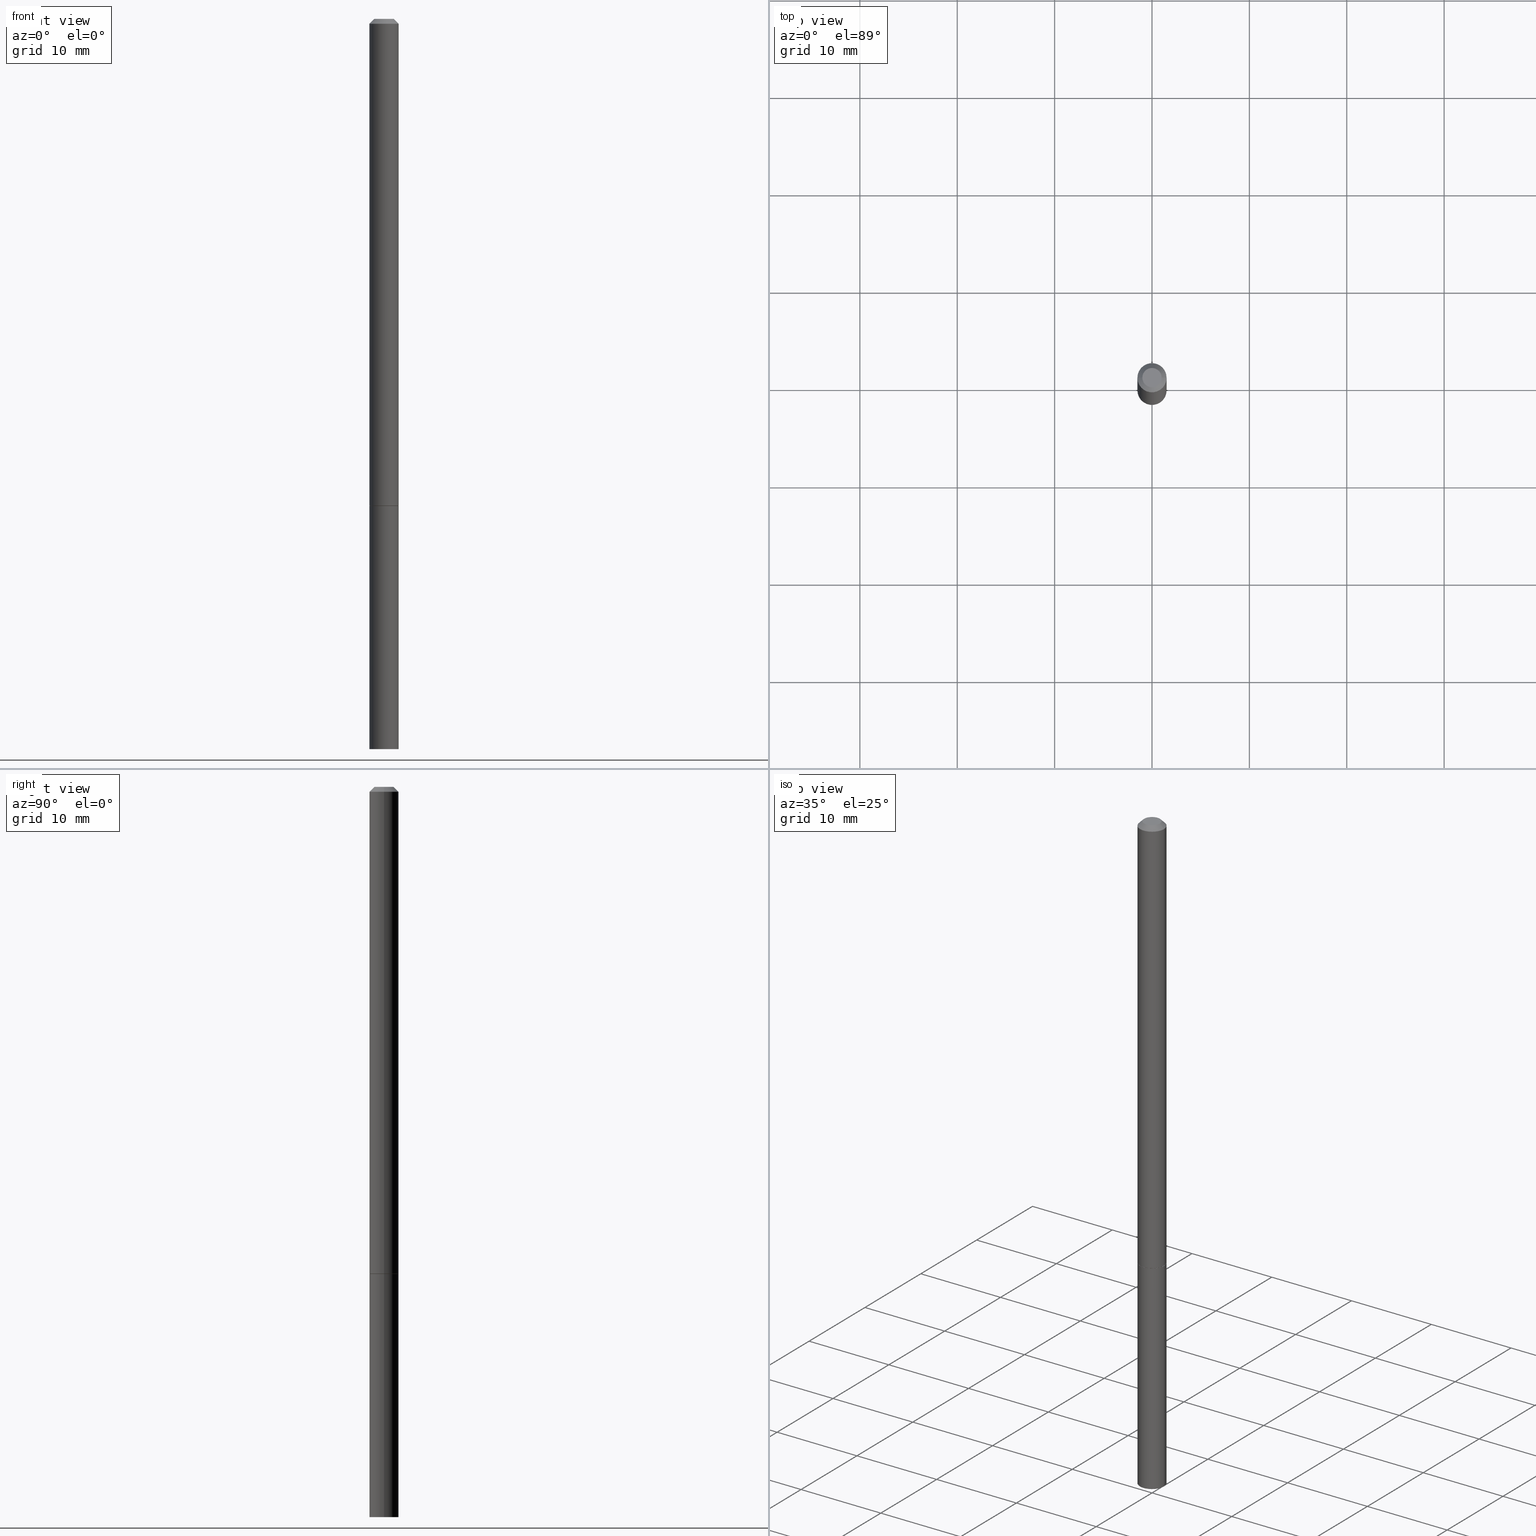
[diagram: canonical four-view strip — front | top / right | iso, engineering-drawing reading convention]
A machine part, canonical four-view strip (front | top / right | iso — engineering-drawing reading convention). The complete STEP part file that produces these views, byte-faithful:
ISO-10303-21;
HEADER;
FILE_DESCRIPTION (( 'STEP AP203' ),
    '1' );
FILE_NAME ('43301.STEP',
    '2024-02-28T04:17:36',
    ( '' ),
    ( '' ),
    'SwSTEP 2.0',
    'SolidWorks 2023',
    '' );
FILE_SCHEMA (( 'CONFIG_CONTROL_DESIGN' ));
ENDSEC;

DATA;
#1 = ORIENTED_EDGE ( 'NONE', *, *, #211, .T. ) ;
#2 = AXIS2_PLACEMENT_3D ( 'NONE', #182, #120, #38 ) ;
#3 = EDGE_CURVE ( 'NONE', #60, #321, #4, .T. ) ;
#4 = LINE ( 'NONE', #354, #289 ) ;
#5 = EDGE_CURVE ( 'NONE', #186, #293, #286, .T. ) ;
#6 = FACE_OUTER_BOUND ( 'NONE', #267, .T. ) ;
#7 = AXIS2_PLACEMENT_3D ( 'NONE', #167, #113, #84 ) ;
#8 = AXIS2_PLACEMENT_3D ( 'NONE', #136, #326, #132 ) ;
#9 = ORIENTED_EDGE ( 'NONE', *, *, #216, .F. ) ;
#10 = PLANE ( 'NONE',  #248 ) ;
#11 = CARTESIAN_POINT ( 'NONE',  ( 4.123439461174222518E-16, 0.05904999999999314270, -1.968500000000000139 ) ) ;
#12 = ORIENTED_EDGE ( 'NONE', *, *, #216, .T. ) ;
#13 = PLANE ( 'NONE',  #35 ) ;
#14 = VECTOR ( 'NONE', #362, 39.37007874015748854 ) ;
#15 =( CONVERSION_BASED_UNIT ( 'INCH', #163 ) LENGTH_UNIT ( ) NAMED_UNIT ( #63 ) );
#16 = ORIENTED_EDGE ( 'NONE', *, *, #29, .T. ) ;
#17 = DIRECTION ( 'NONE',  ( -2.445468806185136597E-29, 3.491481338843145583E-15, 1.000000000000000000 ) ) ;
#18 = DESIGN_CONTEXT ( 'detailed design', #251, 'design' ) ;
#19 = CARTESIAN_POINT ( 'NONE',  ( 0.000000000000000000, 0.000000000000000000, 0.000000000000000000 ) ) ;
#20 = FACE_OUTER_BOUND ( 'NONE', #303, .T. ) ;
#21 = APPROVAL_ROLE ( '' ) ;
#22 = ADVANCED_FACE ( 'NONE', ( #97 ), #230, .F. ) ;
#23 = CYLINDRICAL_SURFACE ( 'NONE', #310, 0.05904999999999984567 ) ;
#24 =( NAMED_UNIT ( * ) PLANE_ANGLE_UNIT ( ) SI_UNIT ( $, .RADIAN. ) );
#25 = CC_DESIGN_APPROVAL ( #131, ( #57 ) ) ;
#26 = LINE ( 'NONE', #110, #56 ) ;
#27 = PERSON_AND_ORGANIZATION ( #183, #315 ) ;
#28 = ORIENTED_EDGE ( 'NONE', *, *, #106, .T. ) ;
#29 = EDGE_CURVE ( 'NONE', #44, #41, #357, .T. ) ;
#30 = ORIENTED_EDGE ( 'NONE', *, *, #58, .T. ) ;
#31 = AXIS2_PLACEMENT_3D ( 'NONE', #190, #137, #359 ) ;
#32 = LOCAL_TIME ( 23, 17, 36.00000000000000000, #191 ) ;
#33 = ORIENTED_EDGE ( 'NONE', *, *, #356, .F. ) ;
#34 = PRODUCT_DEFINITION ( 'UNKNOWN', '', #57, #18 ) ;
#35 = AXIS2_PLACEMENT_3D ( 'NONE', #274, #262, #89 ) ;
#36 = ADVANCED_BREP_SHAPE_REPRESENTATION ( '43301', ( #70, #187, #144 ), #349 ) ;
#37 = EDGE_LOOP ( 'NONE', ( #33, #172, #158, #240 ) ) ;
#38 = DIRECTION ( 'NONE',  ( 1.000000000000000000, -6.982962677686270655E-15, 0.000000000000000000 ) ) ;
#39 = AXIS2_PLACEMENT_3D ( 'NONE', #249, #297, #271 ) ;
#40 = FACE_OUTER_BOUND ( 'NONE', #366, .T. ) ;
#41 = VERTEX_POINT ( 'NONE', #94 ) ;
#42 = CYLINDRICAL_SURFACE ( 'NONE', #241, 0.05905000000000001914 ) ;
#43 = ORIENTED_EDGE ( 'NONE', *, *, #117, .T. ) ;
#44 = VERTEX_POINT ( 'NONE', #352 ) ;
#45 = CARTESIAN_POINT ( 'NONE',  ( 0.05904999999999994975, -7.281833480291261254E-15, -1.967499999999999805 ) ) ;
#46 = CONICAL_SURFACE ( 'NONE', #160, 0.05904999999999974158, 0.7853981633974476129 ) ;
#47 = CARTESIAN_POINT ( 'NONE',  ( 4.890937612370292426E-31, -6.982962677686317493E-17, -0.02000000000000007674 ) ) ;
#48 = DIRECTION ( 'NONE',  ( -2.445468806185136597E-29, 3.491481338843145583E-15, 1.000000000000000000 ) ) ;
#49 = CC_DESIGN_PERSON_AND_ORGANIZATION_ASSIGNMENT ( #27, #363, ( #283 ) ) ;
#50 = COORDINATED_UNIVERSAL_TIME_OFFSET ( 5, 0, .BEHIND. ) ;
#51 = CARTESIAN_POINT ( 'NONE',  ( -0.05904999999999974158, 3.425143193405090089E-16, -0.02000000000000007674 ) ) ;
#52 = APPROVAL_STATUS ( 'not_yet_approved' ) ;
#53 = DIRECTION ( 'NONE',  ( 1.000000000000000000, -6.982962677686261977E-15, 0.000000000000000000 ) ) ;
#54 = APPROVAL_ROLE ( '' ) ;
#55 = EDGE_LOOP ( 'NONE', ( #69, #104, #324, #346 ) ) ;
#56 = VECTOR ( 'NONE', #327, 39.37007874015748143 ) ;
#57 = PRODUCT_DEFINITION_FORMATION_WITH_SPECIFIED_SOURCE ( 'ANY', '', #283, .NOT_KNOWN. ) ;
#58 = EDGE_CURVE ( 'NONE', #149, #307, #119, .T. ) ;
#59 = DIRECTION ( 'NONE',  ( -1.000000000000000000, 6.982962677686265922E-15, 0.000000000000000000 ) ) ;
#60 = VERTEX_POINT ( 'NONE', #99 ) ;
#61 = CONICAL_SURFACE ( 'NONE', #2, 0.05805000000000001131, 0.7853981633973801113 ) ;
#62 = APPROVAL_ROLE ( '' ) ;
#63 = DIMENSIONAL_EXPONENTS ( 1.000000000000000000, 0.000000000000000000, 0.000000000000000000, 0.000000000000000000, 0.000000000000000000, 0.000000000000000000, 0.000000000000000000 ) ;
#64 = CC_DESIGN_PERSON_AND_ORGANIZATION_ASSIGNMENT ( #175, #146, ( #71 ) ) ;
#65 = VERTEX_POINT ( 'NONE', #103 ) ;
#66 = FACE_OUTER_BOUND ( 'NONE', #37, .T. ) ;
#67 = ORIENTED_EDGE ( 'NONE', *, *, #222, .F. ) ;
#68 = DIRECTION ( 'NONE',  ( -2.445468806185136877E-29, 3.491481338843145188E-15, 1.000000000000000000 ) ) ;
#69 = ORIENTED_EDGE ( 'NONE', *, *, #308, .F. ) ;
#70 = MANIFOLD_SOLID_BREP ( 'Body-Move/Copy2[1]', #275 ) ;
#71 = SECURITY_CLASSIFICATION ( '', '', #253 ) ;
#72 = ORIENTED_EDGE ( 'NONE', *, *, #143, .T. ) ;
#73 = EDGE_CURVE ( 'NONE', #41, #44, #159, .T. ) ;
#74 = ORIENTED_EDGE ( 'NONE', *, *, #231, .F. ) ;
#75 = VERTEX_POINT ( 'NONE', #208 ) ;
#76 = ORIENTED_EDGE ( 'NONE', *, *, #3, .F. ) ;
#77 = DIRECTION ( 'NONE',  ( -2.445468806185136877E-29, 3.491481338843145188E-15, 1.000000000000000000 ) ) ;
#78 = APPROVAL_DATE_TIME ( #361, #90 ) ;
#79 = ADVANCED_FACE ( 'NONE', ( #323 ), #168, .T. ) ;
#80 = FACE_OUTER_BOUND ( 'NONE', #200, .T. ) ;
#81 = AXIS2_PLACEMENT_3D ( 'NONE', #121, #154, #263 ) ;
#82 = APPROVAL_DATE_TIME ( #328, #131 ) ;
#83 = DIRECTION ( 'NONE',  ( 1.000000000000000000, -6.982962677686270655E-15, 0.000000000000000000 ) ) ;
#84 = DIRECTION ( 'NONE',  ( 1.000000000000000000, -6.982962677686265922E-15, 0.000000000000000000 ) ) ;
#85 = EDGE_LOOP ( 'NONE', ( #16, #150, #322, #258 ) ) ;
#86 =( NAMED_UNIT ( * ) SI_UNIT ( $, .STERADIAN. ) SOLID_ANGLE_UNIT ( ) );
#87 = VERTEX_POINT ( 'NONE', #157 ) ;
#88 = CIRCLE ( 'NONE', #96, 0.05905000000000001914 ) ;
#89 = DIRECTION ( 'NONE',  ( 1.000000000000000000, -6.982962677686265922E-15, 4.876176775795935793E-29 ) ) ;
#90 = APPROVAL ( #52, 'UNSPECIFIED' ) ;
#91 = DATE_AND_TIME ( #312, #234 ) ;
#92 = LOCAL_TIME ( 23, 17, 36.00000000000000000, #171 ) ;
#93 = APPROVAL_DATE_TIME ( #91, #254 ) ;
#94 = CARTESIAN_POINT ( 'NONE',  ( -0.05805000000000001131, -6.455212503055771609E-15, -1.968499999999999694 ) ) ;
#95 = AXIS2_PLACEMENT_3D ( 'NONE', #11, #259, #232 ) ;
#96 = AXIS2_PLACEMENT_3D ( 'NONE', #261, #153, #233 ) ;
#97 = FACE_OUTER_BOUND ( 'NONE', #212, .T. ) ;
#98 = CYLINDRICAL_SURFACE ( 'NONE', #252, 0.05904999999999984567 ) ;
#99 = CARTESIAN_POINT ( 'NONE',  ( -0.05905000000000001914, -8.171738070958045625E-15, -2.952799999999999869 ) ) ;
#100 = DIRECTION ( 'NONE',  ( 1.000000000000000000, -6.982962677686266711E-15, 4.876176775795935793E-29 ) ) ;
#101 = LINE ( 'NONE', #313, #169 ) ;
#102 = AXIS2_PLACEMENT_3D ( 'NONE', #133, #360, #195 ) ;
#103 = CARTESIAN_POINT ( 'NONE',  ( 0.05905000000000001914, -7.285324961630105839E-15, -1.968499999999999694 ) ) ;
#104 = ORIENTED_EDGE ( 'NONE', *, *, #166, .T. ) ;
#105 = CARTESIAN_POINT ( 'NONE',  ( 0.05904999999999974158, -4.749420335452702929E-16, -0.02000000000000007674 ) ) ;
#106 = EDGE_CURVE ( 'NONE', #149, #293, #219, .T. ) ;
#107 = LINE ( 'NONE', #161, #128 ) ;
#108 = UNCERTAINTY_MEASURE_WITH_UNIT (LENGTH_MEASURE( 1.000000000000000082E-05 ), #15, 'distance_accuracy_value', 'NONE');
#109 = PERSON_AND_ORGANIZATION_ROLE ( 'creator' ) ;
#110 = CARTESIAN_POINT ( 'NONE',  ( 0.05904999999999984567, -4.123439461173729480E-16, 2.879382386107492513E-30 ) ) ;
#111 = CIRCLE ( 'NONE', #39, 0.03904999999999975158 ) ;
#112 = PERSON_AND_ORGANIZATION ( #183, #315 ) ;
#113 = DIRECTION ( 'NONE',  ( -2.445468806185136597E-29, 3.491481338843145583E-15, 1.000000000000000000 ) ) ;
#114 = EDGE_LOOP ( 'NONE', ( #237, #140, #220, #317 ) ) ;
#115 = APPLICATION_PROTOCOL_DEFINITION ( 'international standard', 'config_control_design', 1994, #251 ) ;
#116 = ORIENTED_EDGE ( 'NONE', *, *, #106, .F. ) ;
#117 = EDGE_CURVE ( 'NONE', #321, #65, #202, .T. ) ;
#118 = PERSON_AND_ORGANIZATION ( #183, #315 ) ;
#119 = CIRCLE ( 'NONE', #338, 0.03904999999999975158 ) ;
#120 = DIRECTION ( 'NONE',  ( -2.445468806185136597E-29, 3.491481338843145583E-15, 1.000000000000000000 ) ) ;
#121 = CARTESIAN_POINT ( 'NONE',  ( 4.890937612370292426E-31, -6.982962677686317493E-17, -0.02000000000000007674 ) ) ;
#122 = CARTESIAN_POINT ( 'NONE',  ( 0.000000000000000000, 0.000000000000000000, 0.000000000000000000 ) ) ;
#123 = DIRECTION ( 'NONE',  ( 1.000000000000000000, -6.982962677686270655E-15, 0.000000000000000000 ) ) ;
#124 = CARTESIAN_POINT ( 'NONE',  ( 0.03904999999999975158, -3.714222401791235589E-16, -5.549066237130309406E-17 ) ) ;
#125 = CARTESIAN_POINT ( 'NONE',  ( 4.123439461174463121E-16, 0.05904999999998970101, -2.952799999999999869 ) ) ;
#126 = DIRECTION ( 'NONE',  ( -2.445468806185136597E-29, 3.491481338843145583E-15, 1.000000000000000000 ) ) ;
#127 = ORIENTED_EDGE ( 'NONE', *, *, #151, .F. ) ;
#128 = VECTOR ( 'NONE', #301, 39.37007874015748854 ) ;
#129 = VECTOR ( 'NONE', #68, 39.37007874015748143 ) ;
#130 = FACE_OUTER_BOUND ( 'NONE', #114, .T. ) ;
#131 = APPROVAL ( #221, 'UNSPECIFIED' ) ;
#132 = DIRECTION ( 'NONE',  ( -1.000000000000000000, 6.982962677686265922E-15, 0.000000000000000000 ) ) ;
#133 = CARTESIAN_POINT ( 'NONE',  ( 7.220980290903470182E-29, -1.030964609733603853E-14, -2.952799999999999869 ) ) ;
#134 = CALENDAR_DATE ( 2024, 27, 2 ) ;
#135 = CYLINDRICAL_SURFACE ( 'NONE', #281, 0.05905000000000001914 ) ;
#136 = CARTESIAN_POINT ( 'NONE',  ( 4.890937612370292426E-31, -6.982962677686317493E-17, -0.02000000000000007674 ) ) ;
#137 = DIRECTION ( 'NONE',  ( 2.438088387897960049E-29, -3.491481338843145188E-15, -1.000000000000000000 ) ) ;
#138 = VERTEX_POINT ( 'NONE', #45 ) ;
#139 = DIRECTION ( 'NONE',  ( 1.000000000000000000, -6.982962677686261977E-15, 0.000000000000000000 ) ) ;
#140 = ORIENTED_EDGE ( 'NONE', *, *, #308, .T. ) ;
#141 = EDGE_LOOP ( 'NONE', ( #235, #280 ) ) ;
#142 = AXIS2_PLACEMENT_3D ( 'NONE', #316, #181, #320 ) ;
#143 = EDGE_CURVE ( 'NONE', #293, #186, #329, .T. ) ;
#144 = AXIS2_PLACEMENT_3D ( 'NONE', #19, #250, #334 ) ;
#145 = PERSON_AND_ORGANIZATION_ROLE ( 'design_supplier' ) ;
#146 = PERSON_AND_ORGANIZATION_ROLE ( 'classification_officer' ) ;
#147 = PRODUCT_RELATED_PRODUCT_CATEGORY ( 'detail', '', ( #283 ) ) ;
#148 = APPLICATION_CONTEXT ( 'configuration controlled 3d designs of mechanical parts and assemblies' ) ;
#149 = VERTEX_POINT ( 'NONE', #243 ) ;
#150 = ORIENTED_EDGE ( 'NONE', *, *, #356, .T. ) ;
#151 = EDGE_CURVE ( 'NONE', #307, #186, #107, .T. ) ;
#152 = VECTOR ( 'NONE', #331, 39.37007874015748143 ) ;
#153 = DIRECTION ( 'NONE',  ( -2.445468806185136597E-29, 3.491481338843145583E-15, 1.000000000000000000 ) ) ;
#154 = DIRECTION ( 'NONE',  ( -2.445468806185136597E-29, 3.491481338843145583E-15, 1.000000000000000000 ) ) ;
#155 = DIRECTION ( 'NONE',  ( -2.445468806185136597E-29, 3.491481338843145583E-15, 1.000000000000000000 ) ) ;
#156 = CC_DESIGN_PERSON_AND_ORGANIZATION_ASSIGNMENT ( #165, #109, ( #34 ) ) ;
#157 = CARTESIAN_POINT ( 'NONE',  ( -0.05904999999999994975, -3.050084095009030195E-15, -1.967499999999999805 ) ) ;
#158 = ORIENTED_EDGE ( 'NONE', *, *, #257, .T. ) ;
#159 = CIRCLE ( 'NONE', #342, 0.05805000000000001131 ) ;
#160 = AXIS2_PLACEMENT_3D ( 'NONE', #47, #218, #59 ) ;
#161 = CARTESIAN_POINT ( 'NONE',  ( 0.05904999999999974158, -4.749420335452702929E-16, -0.02000000000000007674 ) ) ;
#162 = PLANE ( 'NONE',  #31 ) ;
#163 = LENGTH_MEASURE_WITH_UNIT ( LENGTH_MEASURE( 0.02539999999999999897 ), #199 );
#164 = DIRECTION ( 'NONE',  ( -2.445468806185136597E-29, 3.491481338843145583E-15, 1.000000000000000000 ) ) ;
#165 = PERSON_AND_ORGANIZATION ( #183, #315 ) ;
#166 = EDGE_CURVE ( 'NONE', #87, #138, #209, .T. ) ;
#167 = CARTESIAN_POINT ( 'NONE',  ( 4.890937612370292426E-31, -6.982962677686317493E-17, -0.02000000000000007674 ) ) ;
#168 = CONICAL_SURFACE ( 'NONE', #142, 0.05805000000000001131, 0.7853981633973801113 ) ;
#169 = VECTOR ( 'NONE', #291, 39.37007874015748143 ) ;
#170 = EDGE_LOOP ( 'NONE', ( #127, #189, #28, #72 ) ) ;
#171 = COORDINATED_UNIVERSAL_TIME_OFFSET ( 5, 0, .BEHIND. ) ;
#172 = ORIENTED_EDGE ( 'NONE', *, *, #73, .T. ) ;
#173 = EDGE_CURVE ( 'NONE', #138, #87, #348, .T. ) ;
#174 = PERSON_AND_ORGANIZATION ( #183, #315 ) ;
#175 = PERSON_AND_ORGANIZATION ( #183, #315 ) ;
#176 = DATE_TIME_ROLE ( 'classification_date' ) ;
#177 = EDGE_CURVE ( 'NONE', #138, #186, #26, .T. ) ;
#178 = CC_DESIGN_SECURITY_CLASSIFICATION ( #71, ( #57 ) ) ;
#179 = LOCAL_TIME ( 23, 17, 36.00000000000000000, #247 ) ;
#180 = ADVANCED_FACE ( 'NONE', ( #130 ), #23, .T. ) ;
#181 = DIRECTION ( 'NONE',  ( -2.445468806185136597E-29, 3.491481338843145583E-15, 1.000000000000000000 ) ) ;
#182 = CARTESIAN_POINT ( 'NONE',  ( 4.813905344975440714E-29, -6.872981015512730918E-15, -1.968499999999999694 ) ) ;
#183 = PERSON ( 'UNSPECIFIED', 'UNSPECIFIED', 'UNSPECIFIED', ('UNSPECIFIED'), ('UNSPECIFIED'), ('UNSPECIFIED') ) ;
#184 = CARTESIAN_POINT ( 'NONE',  ( -0.05905000000000001914, -8.171738070958045625E-15, -1.968499999999999694 ) ) ;
#185 = DIRECTION ( 'NONE',  ( -2.445468806185136877E-29, 3.491481338843145188E-15, 1.000000000000000000 ) ) ;
#186 = VERTEX_POINT ( 'NONE', #105 ) ;
#187 = MANIFOLD_SOLID_BREP ( 'Body-Move/Copy2[2]', #229 ) ;
#188 = ORIENTED_EDGE ( 'NONE', *, *, #231, .T. ) ;
#189 = ORIENTED_EDGE ( 'NONE', *, *, #58, .F. ) ;
#190 = CARTESIAN_POINT ( 'NONE',  ( 2.726846925636469433E-16, 0.03904999999999975158, -1.640876774674766395E-16 ) ) ;
#191 = COORDINATED_UNIVERSAL_TIME_OFFSET ( 5, 0, .BEHIND. ) ;
#192 = AXIS2_PLACEMENT_3D ( 'NONE', #273, #299, #139 ) ;
#193 = CC_DESIGN_APPROVAL ( #90, ( #34 ) ) ;
#194 = DIRECTION ( 'NONE',  ( 1.000000000000000000, -6.982962677686265922E-15, 4.876176775795935793E-29 ) ) ;
#195 = DIRECTION ( 'NONE',  ( 1.000000000000000000, -6.982962677686270655E-15, 0.000000000000000000 ) ) ;
#196 = DIRECTION ( 'NONE',  ( 1.000000000000000000, -6.982962677686270655E-15, 0.000000000000000000 ) ) ;
#197 = MECHANICAL_CONTEXT ( 'NONE', #148, 'mechanical' ) ;
#198 = EDGE_LOOP ( 'NONE', ( #9, #223, #337, #116 ) ) ;
#199 =( LENGTH_UNIT ( ) NAMED_UNIT ( * ) SI_UNIT ( $, .METRE. ) );
#200 = EDGE_LOOP ( 'NONE', ( #30, #12 ) ) ;
#201 = ADVANCED_FACE ( 'NONE', ( #80 ), #162, .F. ) ;
#202 = CIRCLE ( 'NONE', #295, 0.05905000000000001914 ) ;
#203 = APPROVAL_PERSON_ORGANIZATION ( #112, #131, #54 ) ;
#204 = PERSON_AND_ORGANIZATION_ROLE ( 'creator' ) ;
#205 = DIRECTION ( 'NONE',  ( 1.000000000000000000, -6.982962677686270655E-15, 0.000000000000000000 ) ) ;
#206 = AXIS2_PLACEMENT_3D ( 'NONE', #268, #164, #53 ) ;
#207 = CARTESIAN_POINT ( 'NONE',  ( 1.357006838635785746E-45, -1.937446121494581442E-31, -5.549066237130534971E-17 ) ) ;
#208 = CARTESIAN_POINT ( 'NONE',  ( 0.05905000000000001914, -1.072199004345341266E-14, -2.952799999999999869 ) ) ;
#209 = CIRCLE ( 'NONE', #206, 0.05904999999999994975 ) ;
#210 = DIRECTION ( 'NONE',  ( -2.445468806185136597E-29, 3.491481338843145583E-15, 1.000000000000000000 ) ) ;
#211 = EDGE_CURVE ( 'NONE', #65, #321, #256, .T. ) ;
#212 = EDGE_LOOP ( 'NONE', ( #1, #43 ) ) ;
#213 = LINE ( 'NONE', #325, #343 ) ;
#214 = CARTESIAN_POINT ( 'NONE',  ( 0.000000000000000000, 0.000000000000000000, 0.000000000000000000 ) ) ;
#215 = DATE_TIME_ROLE ( 'creation_date' ) ;
#216 = EDGE_CURVE ( 'NONE', #307, #149, #111, .T. ) ;
#217 = CARTESIAN_POINT ( 'NONE',  ( 0.000000000000000000, 0.000000000000000000, 0.000000000000000000 ) ) ;
#218 = DIRECTION ( 'NONE',  ( 2.445468806185136597E-29, -3.491481338843145583E-15, -1.000000000000000000 ) ) ;
#219 = LINE ( 'NONE', #51, #14 ) ;
#220 = ORIENTED_EDGE ( 'NONE', *, *, #5, .F. ) ;
#221 = APPROVAL_STATUS ( 'not_yet_approved' ) ;
#222 = EDGE_CURVE ( 'NONE', #75, #65, #213, .T. ) ;
#223 = ORIENTED_EDGE ( 'NONE', *, *, #151, .T. ) ;
#224 = ORIENTED_EDGE ( 'NONE', *, *, #117, .F. ) ;
#225 = CALENDAR_DATE ( 2024, 27, 2 ) ;
#226 = SHAPE_DEFINITION_REPRESENTATION ( #309, #36 ) ;
#227 = CC_DESIGN_DATE_AND_TIME_ASSIGNMENT ( #244, #215, ( #34 ) ) ;
#228 = PERSON_AND_ORGANIZATION ( #183, #315 ) ;
#229 = CLOSED_SHELL ( 'NONE', ( #79, #180, #345, #351, #285, #304, #245, #201 ) ) ;
#230 = PLANE ( 'NONE',  #95 ) ;
#231 = EDGE_CURVE ( 'NONE', #75, #60, #305, .T. ) ;
#232 = DIRECTION ( 'NONE',  ( -1.000000000000000000, 6.982962677686265922E-15, -4.876176775795935793E-29 ) ) ;
#233 = DIRECTION ( 'NONE',  ( 1.000000000000000000, -6.982962677686270655E-15, 0.000000000000000000 ) ) ;
#234 = LOCAL_TIME ( 23, 17, 36.00000000000000000, #255 ) ;
#235 = ORIENTED_EDGE ( 'NONE', *, *, #29, .F. ) ;
#236 = LINE ( 'NONE', #353, #129 ) ;
#237 = ORIENTED_EDGE ( 'NONE', *, *, #173, .T. ) ;
#238 = ADVANCED_FACE ( 'NONE', ( #20 ), #135, .T. ) ;
#239 = CARTESIAN_POINT ( 'NONE',  ( 4.813905344975440714E-29, -6.872981015512730918E-15, -1.968499999999999694 ) ) ;
#240 = ORIENTED_EDGE ( 'NONE', *, *, #166, .F. ) ;
#241 = AXIS2_PLACEMENT_3D ( 'NONE', #122, #155, #100 ) ;
#242 = CARTESIAN_POINT ( 'NONE',  ( 4.813905344975440714E-29, -6.872981015512730918E-15, -1.968499999999999694 ) ) ;
#243 = CARTESIAN_POINT ( 'NONE',  ( -0.03904999999999975158, 3.075995059520779021E-16, -5.549066237130737733E-17 ) ) ;
#244 = DATE_AND_TIME ( #134, #179 ) ;
#245 = ADVANCED_FACE ( 'NONE', ( #364 ), #13, .F. ) ;
#246 = DIRECTION ( 'NONE',  ( -2.445468806185136597E-29, 3.491481338843145583E-15, 1.000000000000000000 ) ) ;
#247 = COORDINATED_UNIVERSAL_TIME_OFFSET ( 5, 0, .BEHIND. ) ;
#248 = AXIS2_PLACEMENT_3D ( 'NONE', #125, #365, #270 ) ;
#249 = CARTESIAN_POINT ( 'NONE',  ( 1.357006838635785746E-45, -1.937446121494581442E-31, -5.549066237130534971E-17 ) ) ;
#250 = DIRECTION ( 'NONE',  ( 0.000000000000000000, 0.000000000000000000, 1.000000000000000000 ) ) ;
#251 = APPLICATION_CONTEXT ( 'configuration controlled 3d designs of mechanical parts and assemblies' ) ;
#252 = AXIS2_PLACEMENT_3D ( 'NONE', #347, #318, #264 ) ;
#253 = SECURITY_CLASSIFICATION_LEVEL ( 'unclassified' ) ;
#254 = APPROVAL ( #284, 'UNSPECIFIED' ) ;
#255 = COORDINATED_UNIVERSAL_TIME_OFFSET ( 5, 0, .BEHIND. ) ;
#256 = CIRCLE ( 'NONE', #260, 0.05905000000000001914 ) ;
#257 = EDGE_CURVE ( 'NONE', #44, #138, #101, .T. ) ;
#258 = ORIENTED_EDGE ( 'NONE', *, *, #257, .F. ) ;
#259 = DIRECTION ( 'NONE',  ( 2.438088387897960049E-29, -3.491481338843145188E-15, -1.000000000000000000 ) ) ;
#260 = AXIS2_PLACEMENT_3D ( 'NONE', #242, #17, #83 ) ;
#261 = CARTESIAN_POINT ( 'NONE',  ( 7.220980290903470182E-29, -1.030964609733603853E-14, -2.952799999999999869 ) ) ;
#262 = DIRECTION ( 'NONE',  ( -2.438088387897960049E-29, 3.491481338843145188E-15, 1.000000000000000000 ) ) ;
#263 = DIRECTION ( 'NONE',  ( 1.000000000000000000, -6.982962677686265922E-15, 0.000000000000000000 ) ) ;
#264 = DIRECTION ( 'NONE',  ( 1.000000000000000000, -6.982962677686265922E-15, 4.876176775795935793E-29 ) ) ;
#265 = ORIENTED_EDGE ( 'NONE', *, *, #222, .T. ) ;
#266 = CARTESIAN_POINT ( 'NONE',  ( 4.813905344975440714E-29, -6.872981015512730918E-15, -1.968499999999999694 ) ) ;
#267 = EDGE_LOOP ( 'NONE', ( #76, #358, #265, #224 ) ) ;
#268 = CARTESIAN_POINT ( 'NONE',  ( 4.811459876169255671E-29, -6.869489534173887122E-15, -1.967499999999999805 ) ) ;
#269 = ADVANCED_FACE ( 'NONE', ( #6 ), #42, .T. ) ;
#270 = DIRECTION ( 'NONE',  ( -1.000000000000000000, 6.982962677686265922E-15, -4.876176775795935793E-29 ) ) ;
#271 = DIRECTION ( 'NONE',  ( 1.000000000000000000, -6.982962677686265922E-15, 4.873707401586894073E-29 ) ) ;
#272 = APPLICATION_PROTOCOL_DEFINITION ( 'international standard', 'config_control_design', 1994, #148 ) ;
#273 = CARTESIAN_POINT ( 'NONE',  ( 4.811459876169255671E-29, -6.869489534173887122E-15, -1.967499999999999805 ) ) ;
#274 = CARTESIAN_POINT ( 'NONE',  ( 4.813905344975440714E-29, -6.872981015512730918E-15, -1.968499999999999694 ) ) ;
#275 = CLOSED_SHELL ( 'NONE', ( #238, #341, #22, #269 ) ) ;
#276 = DIRECTION ( 'NONE',  ( -2.445468806185136597E-29, 3.491481338843145583E-15, 1.000000000000000000 ) ) ;
#277 = CARTESIAN_POINT ( 'NONE',  ( -0.05805000000000001131, -6.460510957403993222E-15, -1.968499999999999694 ) ) ;
#278 = ORIENTED_EDGE ( 'NONE', *, *, #282, .F. ) ;
#279 = CC_DESIGN_PERSON_AND_ORGANIZATION_ASSIGNMENT ( #174, #204, ( #57 ) ) ;
#280 = ORIENTED_EDGE ( 'NONE', *, *, #73, .F. ) ;
#281 = AXIS2_PLACEMENT_3D ( 'NONE', #214, #246, #330 ) ;
#282 = EDGE_CURVE ( 'NONE', #60, #75, #88, .T. ) ;
#283 = PRODUCT ( '43301', '43301', '', ( #197 ) ) ;
#284 = APPROVAL_STATUS ( 'not_yet_approved' ) ;
#285 = ADVANCED_FACE ( 'NONE', ( #350 ), #98, .T. ) ;
#286 = CIRCLE ( 'NONE', #81, 0.05904999999999974158 ) ;
#287 = CARTESIAN_POINT ( 'NONE',  ( -0.05904999999999974158, 3.425143193405090089E-16, -0.02000000000000007674 ) ) ;
#288 = DIRECTION ( 'NONE',  ( -2.445468806185136597E-29, 3.491481338843145583E-15, 1.000000000000000000 ) ) ;
#289 = VECTOR ( 'NONE', #185, 39.37007874015748143 ) ;
#290 = CC_DESIGN_APPROVAL ( #254, ( #71 ) ) ;
#291 = DIRECTION ( 'NONE',  ( 0.7071067811864992780, -2.468850131081751401E-15, 0.7071067811865957564 ) ) ;
#292 = ORIENTED_EDGE ( 'NONE', *, *, #211, .F. ) ;
#293 = VERTEX_POINT ( 'NONE', #287 ) ;
#294 = CALENDAR_DATE ( 2024, 27, 2 ) ;
#295 = AXIS2_PLACEMENT_3D ( 'NONE', #332, #276, #196 ) ;
#296 = APPROVAL_PERSON_ORGANIZATION ( #300, #90, #21 ) ;
#297 = DIRECTION ( 'NONE',  ( -2.445468806185136597E-29, 3.491481338843145583E-15, 1.000000000000000000 ) ) ;
#298 = LINE ( 'NONE', #277, #152 ) ;
#299 = DIRECTION ( 'NONE',  ( -2.445468806185136597E-29, 3.491481338843145583E-15, 1.000000000000000000 ) ) ;
#300 = PERSON_AND_ORGANIZATION ( #183, #315 ) ;
#301 = DIRECTION ( 'NONE',  ( 0.7071067811865469066, -7.319954787623252890E-15, -0.7071067811865479058 ) ) ;
#302 = CALENDAR_DATE ( 2024, 27, 2 ) ;
#303 = EDGE_LOOP ( 'NONE', ( #188, #335, #292, #67 ) ) ;
#304 = ADVANCED_FACE ( 'NONE', ( #66 ), #61, .T. ) ;
#305 = CIRCLE ( 'NONE', #102, 0.05905000000000001914 ) ;
#306 = FACE_OUTER_BOUND ( 'NONE', #170, .T. ) ;
#307 = VERTEX_POINT ( 'NONE', #124 ) ;
#308 = EDGE_CURVE ( 'NONE', #87, #293, #236, .T. ) ;
#309 = PRODUCT_DEFINITION_SHAPE ( 'NONE', 'NONE',  #34 ) ;
#310 = AXIS2_PLACEMENT_3D ( 'NONE', #217, #48, #194 ) ;
#311 = CONICAL_SURFACE ( 'NONE', #8, 0.05904999999999974158, 0.7853981633974476129 ) ;
#312 = CALENDAR_DATE ( 2024, 27, 2 ) ;
#313 = CARTESIAN_POINT ( 'NONE',  ( 0.05805000000000001131, -7.278341998952419824E-15, -1.968499999999999694 ) ) ;
#314 = AXIS2_PLACEMENT_3D ( 'NONE', #266, #288, #123 ) ;
#315 = ORGANIZATION ( 'UNSPECIFIED', 'UNSPECIFIED', '' ) ;
#316 = CARTESIAN_POINT ( 'NONE',  ( 4.813905344975440714E-29, -6.872981015512730918E-15, -1.968499999999999694 ) ) ;
#317 = ORIENTED_EDGE ( 'NONE', *, *, #177, .F. ) ;
#318 = DIRECTION ( 'NONE',  ( -2.445468806185136597E-29, 3.491481338843145583E-15, 1.000000000000000000 ) ) ;
#319 = CC_DESIGN_PERSON_AND_ORGANIZATION_ASSIGNMENT ( #228, #145, ( #57 ) ) ;
#320 = DIRECTION ( 'NONE',  ( 1.000000000000000000, -6.982962677686270655E-15, 0.000000000000000000 ) ) ;
#321 = VERTEX_POINT ( 'NONE', #184 ) ;
#322 = ORIENTED_EDGE ( 'NONE', *, *, #173, .F. ) ;
#323 = FACE_OUTER_BOUND ( 'NONE', #85, .T. ) ;
#324 = ORIENTED_EDGE ( 'NONE', *, *, #177, .T. ) ;
#325 = CARTESIAN_POINT ( 'NONE',  ( 0.05905000000000001914, -4.123439461173741806E-16, 2.879382386107500921E-30 ) ) ;
#326 = DIRECTION ( 'NONE',  ( 2.445468806185136597E-29, -3.491481338843145583E-15, -1.000000000000000000 ) ) ;
#327 = DIRECTION ( 'NONE',  ( -2.445468806185136877E-29, 3.491481338843145188E-15, 1.000000000000000000 ) ) ;
#328 = DATE_AND_TIME ( #294, #32 ) ;
#329 = CIRCLE ( 'NONE', #7, 0.05904999999999974158 ) ;
#330 = DIRECTION ( 'NONE',  ( 1.000000000000000000, -6.982962677686266711E-15, 4.876176775795935793E-29 ) ) ;
#331 = DIRECTION ( 'NONE',  ( -0.7071067811864992780, 7.493145998870180611E-15, 0.7071067811865957564 ) ) ;
#332 = CARTESIAN_POINT ( 'NONE',  ( 4.813905344975440714E-29, -6.872981015512730918E-15, -1.968499999999999694 ) ) ;
#333 = CC_DESIGN_DATE_AND_TIME_ASSIGNMENT ( #344, #176, ( #71 ) ) ;
#334 = DIRECTION ( 'NONE',  ( 1.000000000000000000, 0.000000000000000000, 0.000000000000000000 ) ) ;
#335 = ORIENTED_EDGE ( 'NONE', *, *, #3, .T. ) ;
#336 = FACE_OUTER_BOUND ( 'NONE', #198, .T. ) ;
#337 = ORIENTED_EDGE ( 'NONE', *, *, #5, .T. ) ;
#338 = AXIS2_PLACEMENT_3D ( 'NONE', #207, #126, #355 ) ;
#339 = APPROVAL_PERSON_ORGANIZATION ( #118, #254, #62 ) ;
#340 = LOCAL_TIME ( 23, 17, 36.00000000000000000, #50 ) ;
#341 = ADVANCED_FACE ( 'NONE', ( #40 ), #10, .T. ) ;
#342 = AXIS2_PLACEMENT_3D ( 'NONE', #239, #210, #205 ) ;
#343 = VECTOR ( 'NONE', #77, 39.37007874015748143 ) ;
#344 = DATE_AND_TIME ( #225, #92 ) ;
#345 = ADVANCED_FACE ( 'NONE', ( #336 ), #46, .T. ) ;
#346 = ORIENTED_EDGE ( 'NONE', *, *, #143, .F. ) ;
#347 = CARTESIAN_POINT ( 'NONE',  ( 0.000000000000000000, 0.000000000000000000, 0.000000000000000000 ) ) ;
#348 = CIRCLE ( 'NONE', #192, 0.05904999999999994975 ) ;
#349 =( GEOMETRIC_REPRESENTATION_CONTEXT ( 3 ) GLOBAL_UNCERTAINTY_ASSIGNED_CONTEXT ( ( #108 ) ) GLOBAL_UNIT_ASSIGNED_CONTEXT ( ( #15, #24, #86 ) ) REPRESENTATION_CONTEXT ( 'NONE', 'WORKASPACE' ) );
#350 = FACE_OUTER_BOUND ( 'NONE', #55, .T. ) ;
#351 = ADVANCED_FACE ( 'NONE', ( #306 ), #311, .T. ) ;
#352 = CARTESIAN_POINT ( 'NONE',  ( 0.05805000000000001131, -7.278341998952419824E-15, -1.968499999999999694 ) ) ;
#353 = CARTESIAN_POINT ( 'NONE',  ( -0.05904999999999984567, 4.195754854663380632E-16, -2.904631170795514185E-30 ) ) ;
#354 = CARTESIAN_POINT ( 'NONE',  ( -0.05905000000000001914, 4.195754854663392958E-16, -2.904631170795522943E-30 ) ) ;
#355 = DIRECTION ( 'NONE',  ( 1.000000000000000000, -6.982962677686265922E-15, 4.873707401586894073E-29 ) ) ;
#356 = EDGE_CURVE ( 'NONE', #41, #87, #298, .T. ) ;
#357 = CIRCLE ( 'NONE', #314, 0.05805000000000001131 ) ;
#358 = ORIENTED_EDGE ( 'NONE', *, *, #282, .T. ) ;
#359 = DIRECTION ( 'NONE',  ( -1.000000000000000000, 6.982962677686265922E-15, -4.876176775795935793E-29 ) ) ;
#360 = DIRECTION ( 'NONE',  ( -2.445468806185136597E-29, 3.491481338843145583E-15, 1.000000000000000000 ) ) ;
#361 = DATE_AND_TIME ( #302, #340 ) ;
#362 = DIRECTION ( 'NONE',  ( -0.7071067811865469066, 2.468850131082251144E-15, -0.7071067811865479058 ) ) ;
#363 = PERSON_AND_ORGANIZATION_ROLE ( 'design_owner' ) ;
#364 = FACE_OUTER_BOUND ( 'NONE', #141, .T. ) ;
#365 = DIRECTION ( 'NONE',  ( 2.438088387897960049E-29, -3.491481338843145188E-15, -1.000000000000000000 ) ) ;
#366 = EDGE_LOOP ( 'NONE', ( #74, #278 ) ) ;
ENDSEC;
END-ISO-10303-21;
